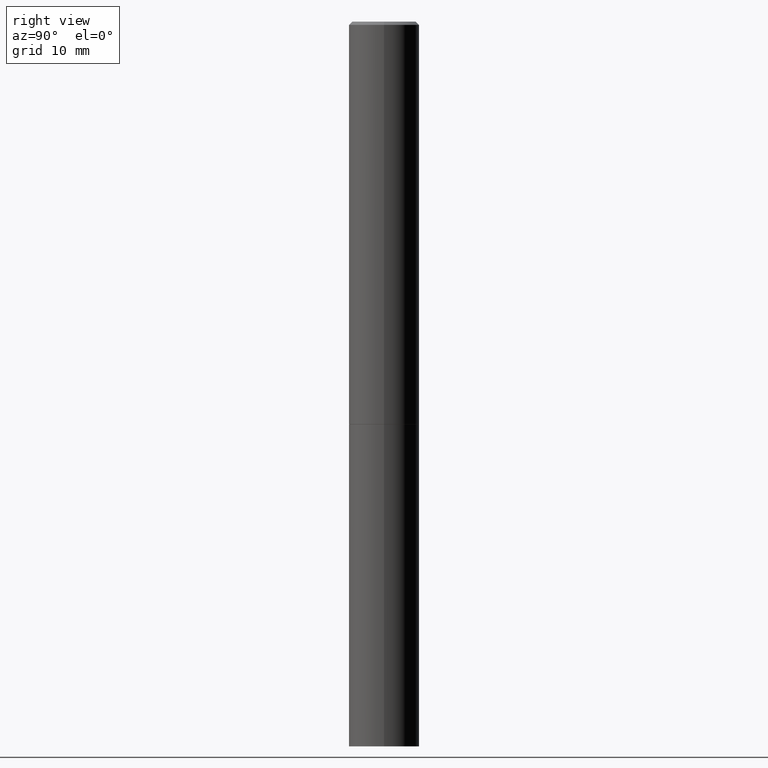
[diagram: clean part render]
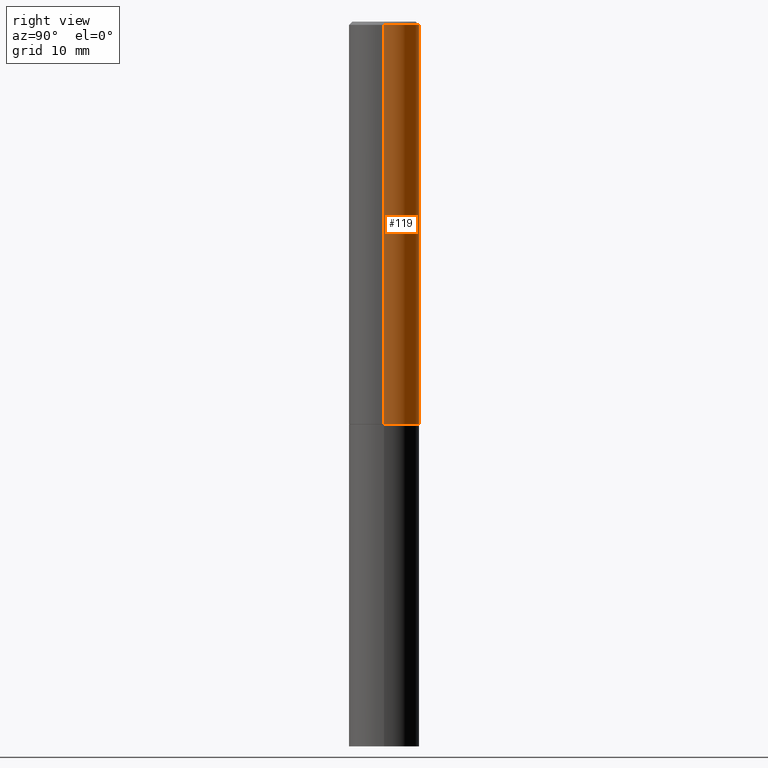
[diagram: same view with one face highlighted and labeled with its STEP entity id]
A machine part, right view. The second image highlights one B-rep face of the part: STEP entity #119.
In plain terms, the highlighted cylindrical surface (edge-blend (fillet) strip) has radius 5.5562 mm, axis along (-0, 0, 1).
Its self-contained STEP definition (entity closure, byte-faithful):
#17 = CIRCLE ( 'NONE', #47, 0.2187499999999999445 ) ;
#22 = VERTEX_POINT ( 'NONE', #65 ) ;
#29 = CARTESIAN_POINT ( 'NONE',  ( 6.111226546656659252E-29, -8.725211865769023513E-15, -2.499000000000000998 ) ) ;
#47 = AXIS2_PLACEMENT_3D ( 'NONE', #29, #181, #366 ) ;
#50 = EDGE_CURVE ( 'NONE', #77, #22, #217, .T. ) ;
#65 = CARTESIAN_POINT ( 'NONE',  ( -0.2187499999999996114, 1.457693458967004981E-15, -0.02000000000000008021 ) ) ;
#71 = DIRECTION ( 'NONE',  ( 1.000000000000000000, -6.982962677686266711E-15, 0.000000000000000000 ) ) ;
#77 = VERTEX_POINT ( 'NONE', #143 ) ;
#81 = DIRECTION ( 'NONE',  ( -2.445468806185136597E-29, 3.491481338843145583E-15, 1.000000000000000000 ) ) ;
#90 = DIRECTION ( 'NONE',  ( -2.445468806185136877E-29, 3.491481338843145188E-15, 1.000000000000000000 ) ) ;
#104 = DIRECTION ( 'NONE',  ( -2.445468806185136597E-29, 3.491481338843145583E-15, 1.000000000000000000 ) ) ;
#107 = AXIS2_PLACEMENT_3D ( 'NONE', #337, #81, #165 ) ;
#109 = ORIENTED_EDGE ( 'NONE', *, *, #50, .F. ) ;
#119 = ADVANCED_FACE ( 'NONE', ( #175 ), #255, .T. ) ;
#143 = CARTESIAN_POINT ( 'NONE',  ( 0.2187499999999996114, -1.570563563789383066E-15, -0.02000000000000008021 ) ) ;
#154 = LINE ( 'NONE', #162, #307 ) ;
#155 = EDGE_CURVE ( 'NONE', #302, #202, #17, .T. ) ;
#159 = VECTOR ( 'NONE', #90, 39.37007874015748143 ) ;
#162 = CARTESIAN_POINT ( 'NONE',  ( 0.2187499999999997780, -1.527523085743869265E-15, 1.066663669705359904E-29 ) ) ;
#165 = DIRECTION ( 'NONE',  ( 1.000000000000000000, -6.982962677686266711E-15, 4.876176775795935793E-29 ) ) ;
#175 = FACE_OUTER_BOUND ( 'NONE', #363, .T. ) ;
#181 = DIRECTION ( 'NONE',  ( -2.445468806185136597E-29, 3.491481338843145583E-15, 1.000000000000000000 ) ) ;
#192 = EDGE_CURVE ( 'NONE', #302, #77, #154, .T. ) ;
#200 = ORIENTED_EDGE ( 'NONE', *, *, #192, .F. ) ;
#201 = AXIS2_PLACEMENT_3D ( 'NONE', #355, #104, #71 ) ;
#202 = VERTEX_POINT ( 'NONE', #204 ) ;
#204 = CARTESIAN_POINT ( 'NONE',  ( -0.2187500000000000000, -2.843208511797721488E-15, -2.499000000000000998 ) ) ;
#217 = CIRCLE ( 'NONE', #201, 0.2187499999999996114 ) ;
#241 = LINE ( 'NONE', #347, #159 ) ;
#255 = CYLINDRICAL_SURFACE ( 'NONE', #107, 0.2187499999999997780 ) ;
#291 = EDGE_CURVE ( 'NONE', #202, #22, #241, .T. ) ;
#292 = DIRECTION ( 'NONE',  ( -2.445468806185136877E-29, 3.491481338843145188E-15, 1.000000000000000000 ) ) ;
#294 = CARTESIAN_POINT ( 'NONE',  ( 0.2187499999999999445, -1.025273495151289515E-14, -2.499000000000000998 ) ) ;
#302 = VERTEX_POINT ( 'NONE', #294 ) ;
#307 = VECTOR ( 'NONE', #292, 39.37007874015748143 ) ;
#334 = ORIENTED_EDGE ( 'NONE', *, *, #155, .T. ) ;
#337 = CARTESIAN_POINT ( 'NONE',  ( 0.000000000000000000, 0.000000000000000000, 0.000000000000000000 ) ) ;
#338 = ORIENTED_EDGE ( 'NONE', *, *, #291, .T. ) ;
#347 = CARTESIAN_POINT ( 'NONE',  ( -0.2187499999999997780, 1.554312234475217579E-15, -1.076017050993259501E-29 ) ) ;
#355 = CARTESIAN_POINT ( 'NONE',  ( 4.890937612370293302E-31, -6.982962677686318726E-17, -0.02000000000000008021 ) ) ;
#363 = EDGE_LOOP ( 'NONE', ( #334, #338, #109, #200 ) ) ;
#366 = DIRECTION ( 'NONE',  ( 1.000000000000000000, -6.982962677686269077E-15, 0.000000000000000000 ) ) ;